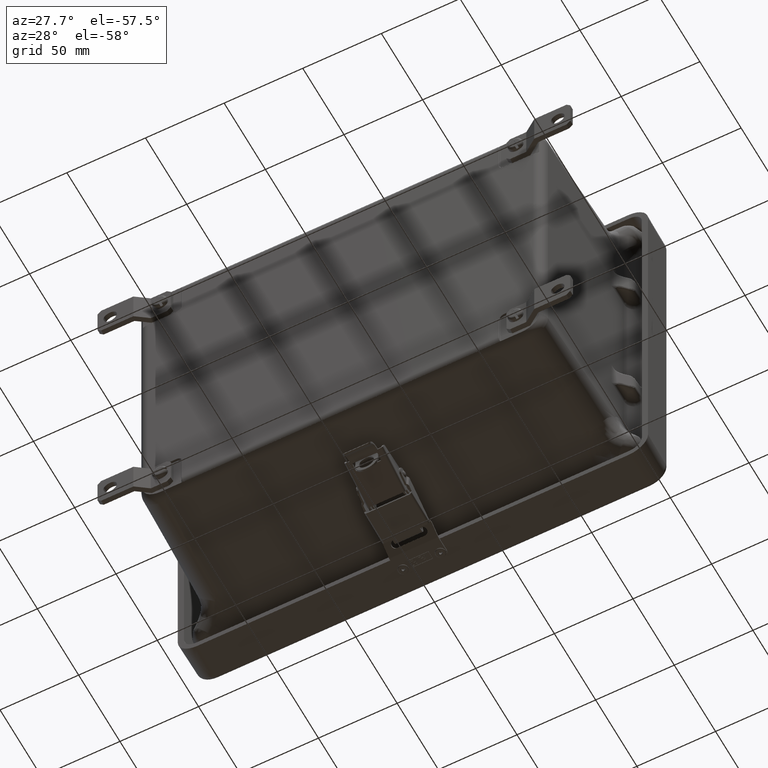
[diagram: clean part render]
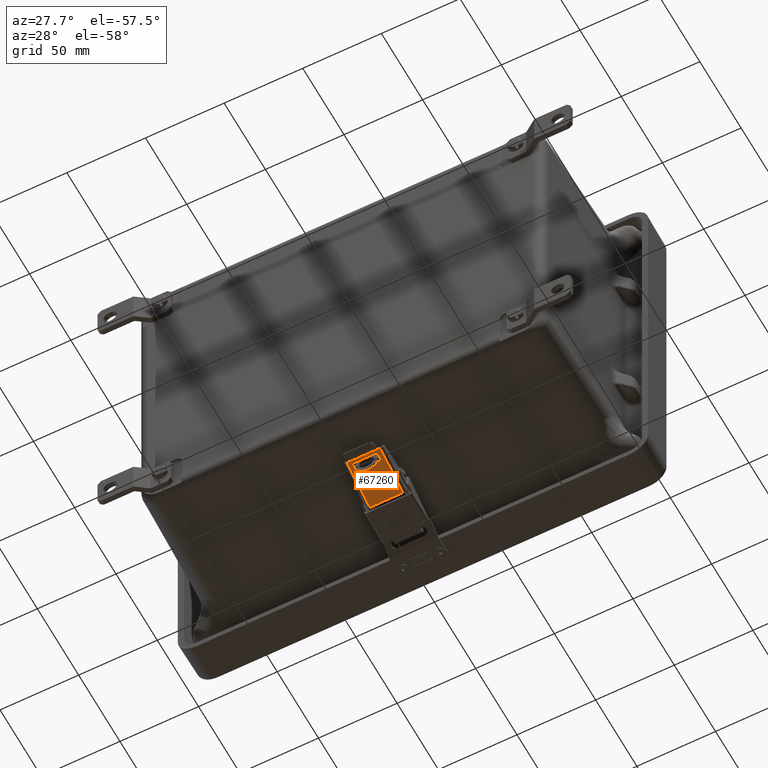
[diagram: same view with one face highlighted and labeled with its STEP entity id]
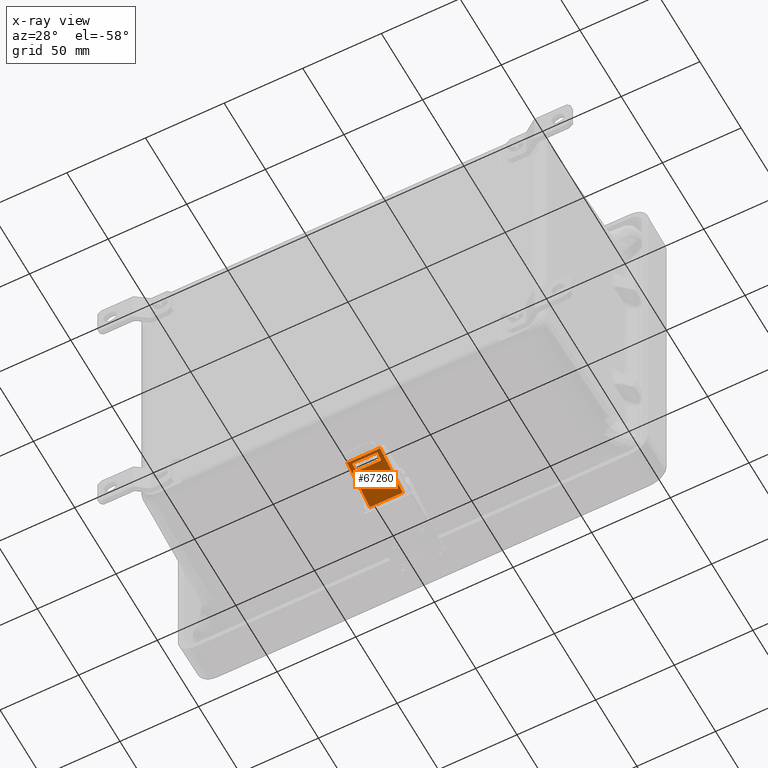
[diagram: x-ray of the same camera — body ghosted, the highlighted face saturated]
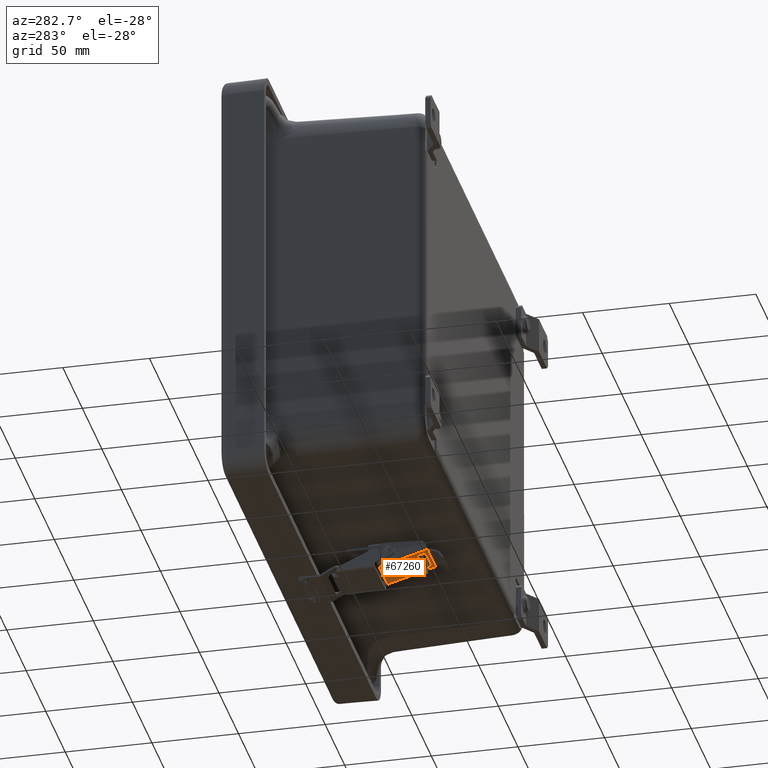
[diagram: same view with one face highlighted and labeled with its STEP entity id]
A machine part, auxiliary view. The second image highlights one B-rep face of the part: STEP entity #67260.
The next image is the same camera in x-ray: the body ghosted, the highlighted face saturated — about 0% of this face is hidden behind the body in this view.
A second angle (auxiliary view) of the same face is appended — the face is thin or edge-on in the first view.
In plain terms, the highlighted planar face has unit normal (-0, 0.2795, 0.9601).
Its self-contained STEP definition (entity closure, byte-faithful):
#146 = AXIS2_PLACEMENT_3D ( 'NONE', #20838, #49429, #16547 ) ;
#258 = ORIENTED_EDGE ( 'NONE', *, *, #5437, .F. ) ;
#1285 = VERTEX_POINT ( 'NONE', #1705 ) ;
#1532 = AXIS2_PLACEMENT_3D ( 'NONE', #45373, #12536, #50891 ) ;
#1565 = AXIS2_PLACEMENT_3D ( 'NONE', #4973, #43300, #10482 ) ;
#1705 = CARTESIAN_POINT ( 'NONE',  ( 0.8195775369826335800, 0.2720000000000001900, -0.3499999999999999800 ) ) ;
#1926 = LINE ( 'NONE', #20887, #43993 ) ;
#3046 = LINE ( 'NONE', #54967, #17597 ) ;
#3932 = LINE ( 'NONE', #10084, #18484 ) ;
#4973 = CARTESIAN_POINT ( 'NONE',  ( 0.5880000000000000800, 0.2720000000000004600, -0.2849999999999999800 ) ) ;
#5420 = CARTESIAN_POINT ( 'NONE',  ( 0.5580000000000000500, 0.2720000000000014100, -1.571166602479409900E-016 ) ) ;
#5437 = EDGE_CURVE ( 'NONE', #7424, #65645, #50315, .T. ) ;
#5966 = FACE_OUTER_BOUND ( 'NONE', #33728, .T. ) ;
#7424 = VERTEX_POINT ( 'NONE', #37599 ) ;
#7782 = CARTESIAN_POINT ( 'NONE',  ( 0.8239999999999998400, 0.2720000000000000200, -0.4125000000000003100 ) ) ;
#9182 = AXIS2_PLACEMENT_3D ( 'NONE', #29656, #68011, #35160 ) ;
#10084 = CARTESIAN_POINT ( 'NONE',  ( 0.7580000000000002300, 0.2720000000000014100, -1.428069802811282600E-016 ) ) ;
#10482 = DIRECTION ( 'NONE',  ( 0.0000000000000000000, -3.414809992080330300E-015, -1.000000000000000000 ) ) ;
#10950 = DIRECTION ( 'NONE',  ( 0.0000000000000000000, 3.472688127539318000E-015, 1.000000000000000000 ) ) ;
#11669 = CARTESIAN_POINT ( 'NONE',  ( 0.8239999999999998400, 0.2720000000000028500, 0.4124999999999983100 ) ) ;
#12192 = LINE ( 'NONE', #11669, #54245 ) ;
#12536 = DIRECTION ( 'NONE',  ( 0.0000000000000000000, -1.000000000000000000, 3.472688127539318000E-015 ) ) ;
#12854 = VECTOR ( 'NONE', #15342, 39.37007874015748100 ) ;
#13027 = EDGE_CURVE ( 'NONE', #48185, #66874, #35332, .T. ) ;
#13270 = LINE ( 'NONE', #26725, #29587 ) ;
#14008 = VECTOR ( 'NONE', #59712, 39.37007874015748100 ) ;
#14720 = DIRECTION ( 'NONE',  ( 0.0000000000000000000, 3.510274550146948700E-015, 1.000000000000000000 ) ) ;
#15342 = DIRECTION ( 'NONE',  ( -1.000000000000000000, 0.0000000000000000000, 0.0000000000000000000 ) ) ;
#15402 = VERTEX_POINT ( 'NONE', #54707 ) ;
#15719 = LINE ( 'NONE', #54209, #14008 ) ;
#16547 = DIRECTION ( 'NONE',  ( 0.0000000000000000000, -3.472688127539318000E-015, -1.000000000000000000 ) ) ;
#16665 = DIRECTION ( 'NONE',  ( 0.0000000000000000000, -1.000000000000000000, 3.472688127539318000E-015 ) ) ;
#17173 = CARTESIAN_POINT ( 'NONE',  ( 0.8239999999999998400, 0.2720000000000028500, 0.4124999999999984200 ) ) ;
#17597 = VECTOR ( 'NONE', #27632, 39.37007874015748100 ) ;
#17757 = VECTOR ( 'NONE', #10950, 39.37007874015748100 ) ;
#17868 = ORIENTED_EDGE ( 'NONE', *, *, #33719, .F. ) ;
#18312 = ORIENTED_EDGE ( 'NONE', *, *, #13027, .T. ) ;
#18484 = VECTOR ( 'NONE', #48418, 39.37007874015748100 ) ;
#19392 = CARTESIAN_POINT ( 'NONE',  ( 0.7280000000000003100, 0.2720000000000025200, 0.3150000000000000000 ) ) ;
#20586 = CARTESIAN_POINT ( 'NONE',  ( 0.5580000000000000500, 0.2720000000000004600, -0.2849999999999999800 ) ) ;
#20838 = CARTESIAN_POINT ( 'NONE',  ( 0.8239999999999998400, 0.2720000000000014100, -1.571166602479409900E-016 ) ) ;
#20870 = CARTESIAN_POINT ( 'NONE',  ( 0.8239999999999998400, 0.2720000000000000200, -0.4125000000000002600 ) ) ;
#20887 = CARTESIAN_POINT ( 'NONE',  ( 0.8239999999999998400, 0.2720000000000025200, 0.3150000000000000000 ) ) ;
#21390 = ORIENTED_EDGE ( 'NONE', *, *, #67132, .T. ) ;
#21576 = PLANE ( 'NONE',  #146 ) ;
#22142 = CARTESIAN_POINT ( 'NONE',  ( 0.7280000000000000900, 0.2720000000000003500, -0.3150000000000000000 ) ) ;
#23491 = ORIENTED_EDGE ( 'NONE', *, *, #61927, .T. ) ;
#23879 = CARTESIAN_POINT ( 'NONE',  ( 0.7580000000000002300, 0.2720000000000004600, -0.2850000000000000300 ) ) ;
#25828 = CARTESIAN_POINT ( 'NONE',  ( -0.3120000000000000000, 0.2720000000000028500, 0.4124999999999983100 ) ) ;
#26725 = CARTESIAN_POINT ( 'NONE',  ( -0.3120000000000000000, 0.2720000000000014100, -1.571166602479409900E-016 ) ) ;
#26800 = CARTESIAN_POINT ( 'NONE',  ( 0.8239999999999998400, 0.2720000000000001900, -0.3499999999999999800 ) ) ;
#27409 = CARTESIAN_POINT ( 'NONE',  ( -0.3120000000000000000, 0.2720000000000000200, -0.4125000000000002600 ) ) ;
#27632 = DIRECTION ( 'NONE',  ( -1.000000000000000000, 0.0000000000000000000, -0.0000000000000000000 ) ) ;
#29176 = EDGE_CURVE ( 'NONE', #43527, #65645, #12192, .T. ) ;
#29180 = LINE ( 'NONE', #59237, #12854 ) ;
#29232 = CARTESIAN_POINT ( 'NONE',  ( 0.8239999999999998400, 0.2720000000000003500, -0.3150000000000000000 ) ) ;
#29500 = CIRCLE ( 'NONE', #36803, 0.03000000000000002300 ) ;
#29587 = VECTOR ( 'NONE', #65091, 39.37007874015748100 ) ;
#29656 = CARTESIAN_POINT ( 'NONE',  ( 0.7280000000000003100, 0.2720000000000024100, 0.2849999999999999800 ) ) ;
#30717 = LINE ( 'NONE', #33084, #71072 ) ;
#32111 = EDGE_CURVE ( 'NONE', #43643, #56149, #30717, .T. ) ;
#32390 = ORIENTED_EDGE ( 'NONE', *, *, #32111, .T. ) ;
#32460 = VERTEX_POINT ( 'NONE', #56535 ) ;
#32518 = VERTEX_POINT ( 'NONE', #23879 ) ;
#33084 = CARTESIAN_POINT ( 'NONE',  ( 0.8239999999999998400, 0.2720000000000014100, -1.571166602479409900E-016 ) ) ;
#33719 = EDGE_CURVE ( 'NONE', #48185, #32518, #3932, .T. ) ;
#33728 = EDGE_LOOP ( 'NONE', ( #50159, #46778, #258, #23491, #55962, #43851, #32390, #54855 ) ) ;
#35160 = DIRECTION ( 'NONE',  ( 0.0000000000000000000, -3.414809992080330300E-015, -1.000000000000000000 ) ) ;
#35282 = LINE ( 'NONE', #29232, #64449 ) ;
#35332 = CIRCLE ( 'NONE', #9182, 0.02999999999999998800 ) ;
#36803 = AXIS2_PLACEMENT_3D ( 'NONE', #49550, #16665, #55062 ) ;
#36933 = ORIENTED_EDGE ( 'NONE', *, *, #49112, .T. ) ;
#37599 = CARTESIAN_POINT ( 'NONE',  ( 0.8239999999999998400, 0.2720000000000026800, 0.3499999999999980300 ) ) ;
#37855 = EDGE_LOOP ( 'NONE', ( #58921, #36933, #42559, #45755, #17868, #18312, #53342, #21390 ) ) ;
#38564 = CIRCLE ( 'NONE', #1532, 0.02999999999999998800 ) ;
#39748 = VERTEX_POINT ( 'NONE', #20586 ) ;
#40071 = EDGE_CURVE ( 'NONE', #52375, #61380, #35282, .T. ) ;
#41128 = EDGE_CURVE ( 'NONE', #43643, #1285, #29180, .T. ) ;
#42559 = ORIENTED_EDGE ( 'NONE', *, *, #40071, .F. ) ;
#43300 = DIRECTION ( 'NONE',  ( 0.0000000000000000000, -1.000000000000000000, 3.472688127539318000E-015 ) ) ;
#43527 = VERTEX_POINT ( 'NONE', #25828 ) ;
#43643 = VERTEX_POINT ( 'NONE', #26800 ) ;
#43851 = ORIENTED_EDGE ( 'NONE', *, *, #41128, .F. ) ;
#43993 = VECTOR ( 'NONE', #59300, 39.37007874015748100 ) ;
#45373 = CARTESIAN_POINT ( 'NONE',  ( 0.5880000000000000800, 0.2720000000000024100, 0.2849999999999999800 ) ) ;
#45526 = EDGE_CURVE ( 'NONE', #66673, #43527, #13270, .T. ) ;
#45755 = ORIENTED_EDGE ( 'NONE', *, *, #53789, .T. ) ;
#46489 = EDGE_CURVE ( 'NONE', #1285, #15402, #15719, .T. ) ;
#46687 = CARTESIAN_POINT ( 'NONE',  ( 0.5880000000000000800, 0.2720000000000003500, -0.3150000000000000000 ) ) ;
#46778 = ORIENTED_EDGE ( 'NONE', *, *, #29176, .T. ) ;
#46963 = LINE ( 'NONE', #5420, #17757 ) ;
#47975 = FACE_BOUND ( 'NONE', #37855, .T. ) ;
#47978 = CIRCLE ( 'NONE', #1565, 0.02999999999999998800 ) ;
#48185 = VERTEX_POINT ( 'NONE', #54482 ) ;
#48418 = DIRECTION ( 'NONE',  ( -2.168133328304970800E-016, -3.472688127539318000E-015, -1.000000000000000000 ) ) ;
#49112 = EDGE_CURVE ( 'NONE', #39748, #61380, #47978, .T. ) ;
#49429 = DIRECTION ( 'NONE',  ( 0.0000000000000000000, -1.000000000000000000, 3.472688127539318000E-015 ) ) ;
#49550 = CARTESIAN_POINT ( 'NONE',  ( 0.7280000000000000900, 0.2720000000000004600, -0.2850000000000000300 ) ) ;
#50000 = DIRECTION ( 'NONE',  ( 1.000000000000000000, -0.0000000000000000000, 0.0000000000000000000 ) ) ;
#50159 = ORIENTED_EDGE ( 'NONE', *, *, #45526, .T. ) ;
#50315 = LINE ( 'NONE', #64126, #63200 ) ;
#50793 = EDGE_CURVE ( 'NONE', #39748, #32460, #46963, .T. ) ;
#50891 = DIRECTION ( 'NONE',  ( 0.0000000000000000000, -3.414809992080330300E-015, -1.000000000000000000 ) ) ;
#52375 = VERTEX_POINT ( 'NONE', #22142 ) ;
#53342 = ORIENTED_EDGE ( 'NONE', *, *, #64182, .F. ) ;
#53789 = EDGE_CURVE ( 'NONE', #52375, #32518, #29500, .T. ) ;
#54019 = DIRECTION ( 'NONE',  ( 1.000000000000000000, -0.0000000000000000000, -0.0000000000000000000 ) ) ;
#54209 = CARTESIAN_POINT ( 'NONE',  ( 0.8195775369826335800, 0.2720000000000014100, -0.3499999999999999800 ) ) ;
#54245 = VECTOR ( 'NONE', #50000, 39.37007874015748100 ) ;
#54482 = CARTESIAN_POINT ( 'NONE',  ( 0.7580000000000002300, 0.2720000000000024100, 0.2849999999999999800 ) ) ;
#54499 = CARTESIAN_POINT ( 'NONE',  ( 0.5880000000000000800, 0.2720000000000025200, 0.3150000000000000000 ) ) ;
#54707 = CARTESIAN_POINT ( 'NONE',  ( 0.8195775369826335800, 0.2720000000000026800, 0.3499999999999980300 ) ) ;
#54855 = ORIENTED_EDGE ( 'NONE', *, *, #59848, .F. ) ;
#54967 = CARTESIAN_POINT ( 'NONE',  ( 0.8239999999999998400, 0.2720000000000026800, 0.3499999999999980300 ) ) ;
#55062 = DIRECTION ( 'NONE',  ( 0.0000000000000000000, -3.414809992080326400E-015, -1.000000000000000000 ) ) ;
#55962 = ORIENTED_EDGE ( 'NONE', *, *, #46489, .F. ) ;
#56149 = VERTEX_POINT ( 'NONE', #7782 ) ;
#56535 = CARTESIAN_POINT ( 'NONE',  ( 0.5580000000000000500, 0.2720000000000024100, 0.2849999999999999800 ) ) ;
#58921 = ORIENTED_EDGE ( 'NONE', *, *, #50793, .F. ) ;
#59237 = CARTESIAN_POINT ( 'NONE',  ( 0.8239999999999998400, 0.2720000000000001900, -0.3499999999999999800 ) ) ;
#59300 = DIRECTION ( 'NONE',  ( 1.000000000000000000, 0.0000000000000000000, 0.0000000000000000000 ) ) ;
#59712 = DIRECTION ( 'NONE',  ( 0.0000000000000000000, 0.0000000000000000000, 1.000000000000000000 ) ) ;
#59848 = EDGE_CURVE ( 'NONE', #66673, #56149, #66750, .T. ) ;
#59915 = VERTEX_POINT ( 'NONE', #54499 ) ;
#60411 = DIRECTION ( 'NONE',  ( 0.0000000000000000000, -3.472688127539318000E-015, -1.000000000000000000 ) ) ;
#61380 = VERTEX_POINT ( 'NONE', #46687 ) ;
#61927 = EDGE_CURVE ( 'NONE', #7424, #15402, #3046, .T. ) ;
#62069 = DIRECTION ( 'NONE',  ( -1.000000000000000000, 0.0000000000000000000, 0.0000000000000000000 ) ) ;
#63200 = VECTOR ( 'NONE', #14720, 39.37007874015748100 ) ;
#64126 = CARTESIAN_POINT ( 'NONE',  ( 0.8239999999999998400, 0.2720000000000014100, -1.742249188082733500E-015 ) ) ;
#64182 = EDGE_CURVE ( 'NONE', #59915, #66874, #1926, .T. ) ;
#64449 = VECTOR ( 'NONE', #62069, 39.37007874015748100 ) ;
#65041 = VECTOR ( 'NONE', #54019, 39.37007874015748100 ) ;
#65091 = DIRECTION ( 'NONE',  ( 0.0000000000000000000, 3.472688127539318000E-015, 1.000000000000000000 ) ) ;
#65645 = VERTEX_POINT ( 'NONE', #17173 ) ;
#66673 = VERTEX_POINT ( 'NONE', #27409 ) ;
#66750 = LINE ( 'NONE', #20870, #65041 ) ;
#66874 = VERTEX_POINT ( 'NONE', #19392 ) ;
#67132 = EDGE_CURVE ( 'NONE', #59915, #32460, #38564, .T. ) ;
#67260 = ADVANCED_FACE ( 'NONE', ( #5966, #47975 ), #21576, .F. ) ;
#68011 = DIRECTION ( 'NONE',  ( 0.0000000000000000000, -1.000000000000000000, 3.472688127539318000E-015 ) ) ;
#71072 = VECTOR ( 'NONE', #60411, 39.37007874015748100 ) ;